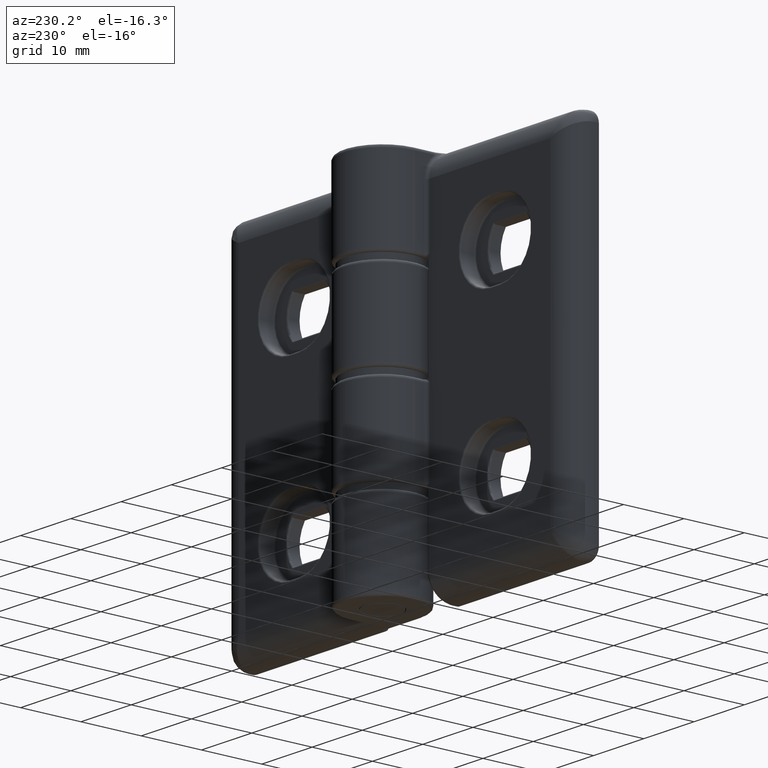
[diagram: clean part render]
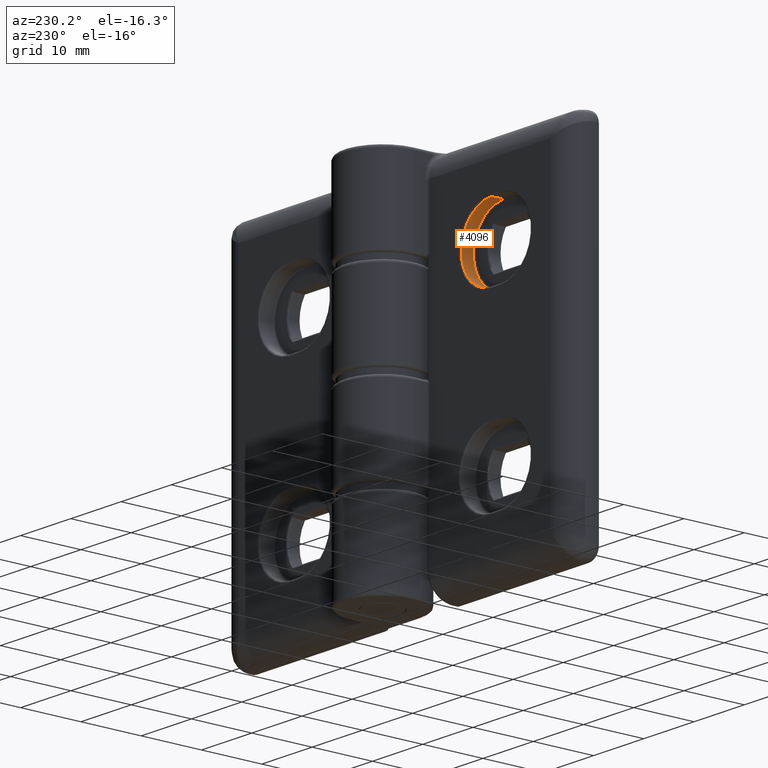
[diagram: same view with one face highlighted and labeled with its STEP entity id]
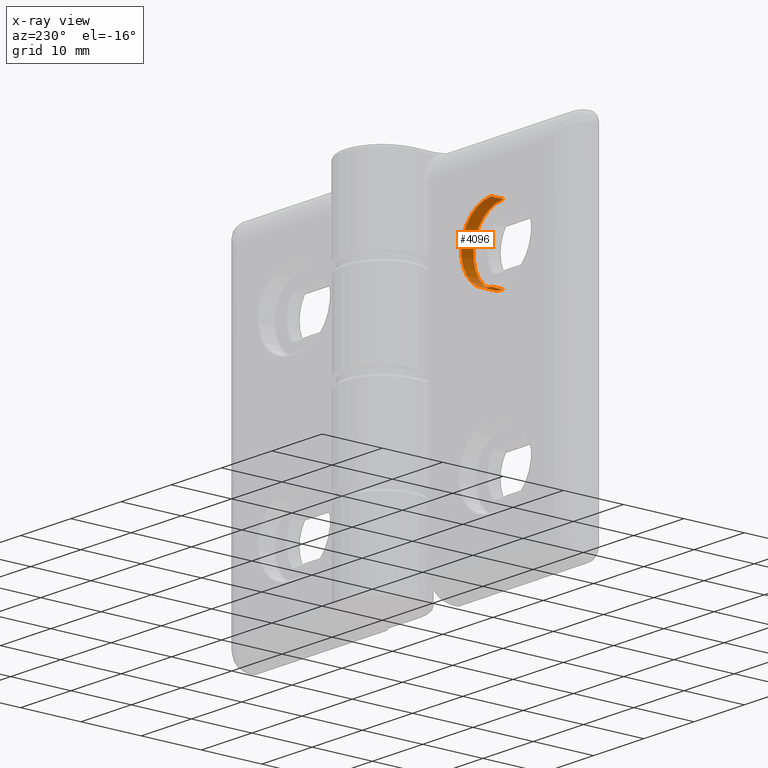
[diagram: x-ray of the same camera — body ghosted, the highlighted face saturated]
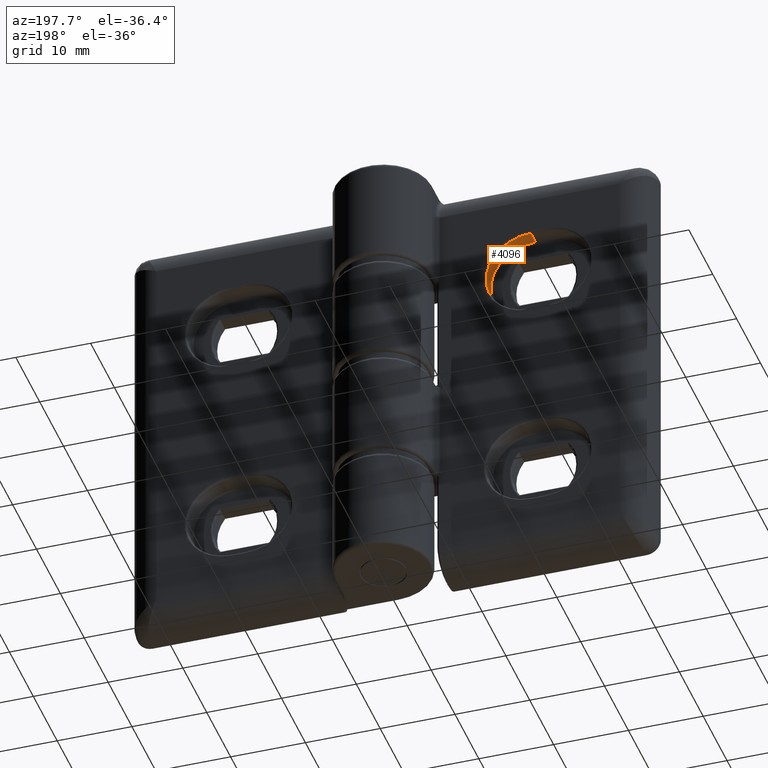
[diagram: same view with one face highlighted and labeled with its STEP entity id]
A machine part, auxiliary view. The second image highlights one B-rep face of the part: STEP entity #4096.
The next image is the same camera in x-ray: the body ghosted, the highlighted face saturated — about 0% of this face is hidden behind the body in this view.
A second angle (auxiliary view) of the same face is appended — the face is thin or edge-on in the first view.
In plain terms, the highlighted cylindrical surface (partial cylindrical patch) has radius 6 mm, axis along (0, 1, -0).
Its self-contained STEP definition (entity closure, byte-faithful):
#215=LINE('',#6508,#473);
#222=LINE('',#6542,#480);
#473=VECTOR('',#5024,2.);
#480=VECTOR('',#5065,2.);
#730=CYLINDRICAL_SURFACE('',#4409,6.);
#866=FACE_OUTER_BOUND('',#1158,.T.);
#1158=EDGE_LOOP('',(#2835,#2836,#2837,#2838));
#1456=CIRCLE('',#4386,6.);
#1466=CIRCLE('',#4403,6.);
#1778=VERTEX_POINT('',#6489);
#1780=VERTEX_POINT('',#6495);
#1783=VERTEX_POINT('',#6506);
#1791=VERTEX_POINT('',#6529);
#2138=EDGE_CURVE('',#1778,#1780,#1456,.T.);
#2143=EDGE_CURVE('',#1783,#1778,#215,.T.);
#2158=EDGE_CURVE('',#1791,#1783,#1466,.T.);
#2160=EDGE_CURVE('',#1791,#1780,#222,.T.);
#2835=ORIENTED_EDGE('',*,*,#2138,.F.);
#2836=ORIENTED_EDGE('',*,*,#2143,.F.);
#2837=ORIENTED_EDGE('',*,*,#2158,.F.);
#2838=ORIENTED_EDGE('',*,*,#2160,.T.);
#4096=ADVANCED_FACE('',(#866),#730,.F.);
#4386=AXIS2_PLACEMENT_3D('',#6499,#5014,#5015);
#4403=AXIS2_PLACEMENT_3D('',#6538,#5058,#5059);
#4409=AXIS2_PLACEMENT_3D('',#6614,#5084,#5085);
#5014=DIRECTION('center_axis',(0.,0.,-1.));
#5015=DIRECTION('ref_axis',(-1.,7.22829203899285E-11,0.));
#5024=DIRECTION('',(-7.2730710343194E-12,0.,1.));
#5058=DIRECTION('center_axis',(0.,0.,1.));
#5059=DIRECTION('ref_axis',(-1.,4.2348347051302E-11,0.));
#5065=DIRECTION('',(0.,0.,1.));
#5084=DIRECTION('center_axis',(0.,0.,-1.));
#5085=DIRECTION('ref_axis',(0.,-1.,0.));
#6489=CARTESIAN_POINT('',(19.0000000001855,-21.,4.25));
#6495=CARTESIAN_POINT('',(19.00000000071,-9.,4.25));
#6499=CARTESIAN_POINT('Origin',(19.,-15.,4.25));
#6506=CARTESIAN_POINT('',(19.0000000002,-21.,2.25));
#6508=CARTESIAN_POINT('',(19.0000000002,-21.,2.25));
#6529=CARTESIAN_POINT('',(19.00000000071,-9.,2.25));
#6538=CARTESIAN_POINT('Origin',(19.,-15.,2.25));
#6542=CARTESIAN_POINT('',(19.00000000071,-9.,2.25));
#6614=CARTESIAN_POINT('Origin',(19.,-15.,2.));